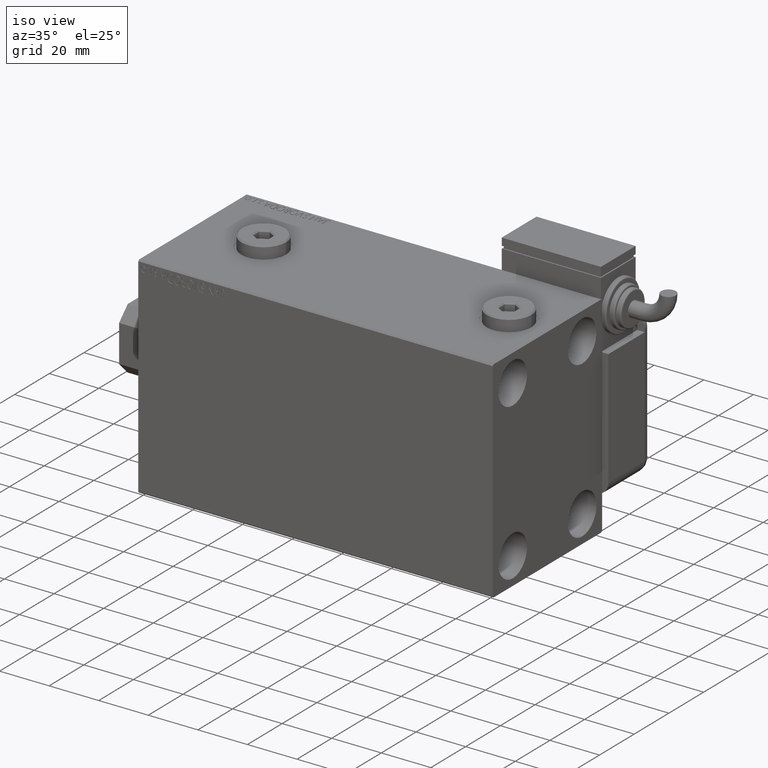
[diagram: clean part render]
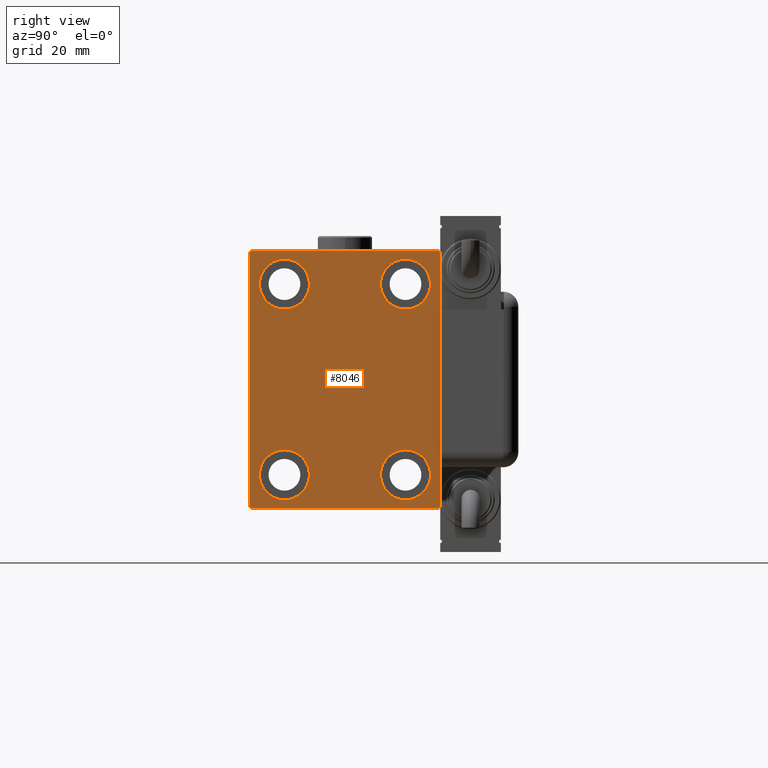
[diagram: tour spotlight — one face highlighted and labeled with its STEP entity id]
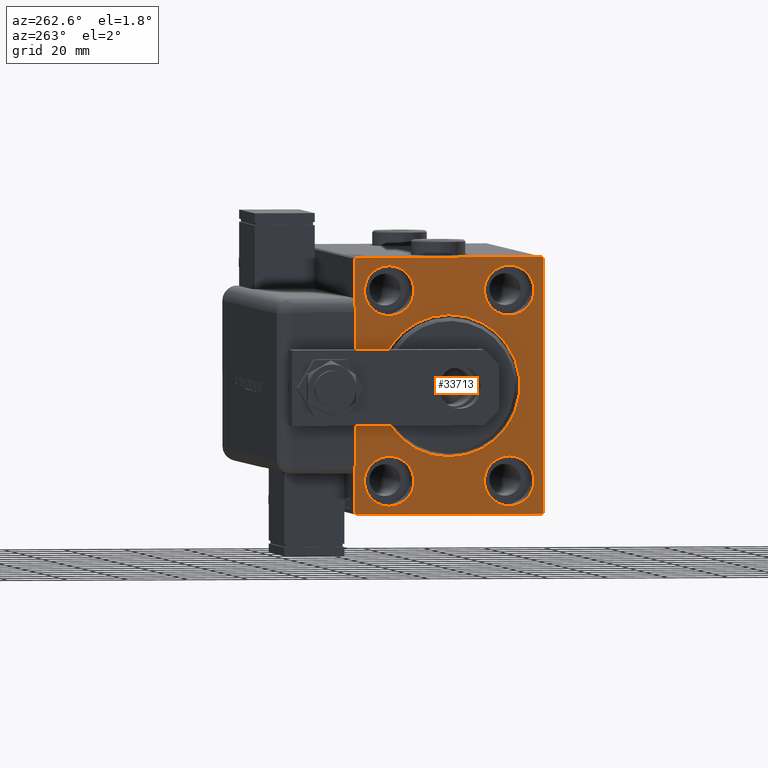
[diagram: tour spotlight — one face highlighted and labeled with its STEP entity id]
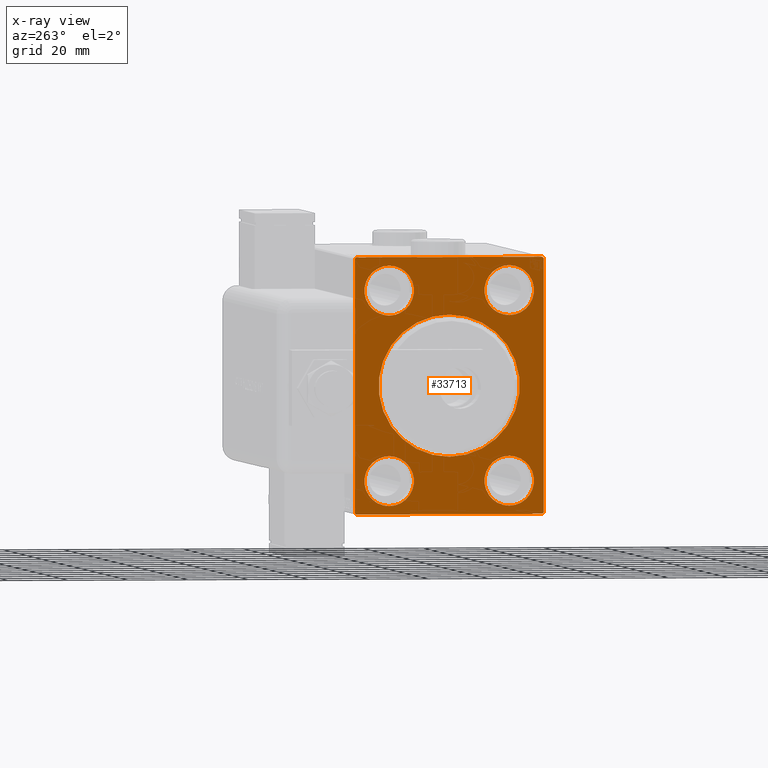
[diagram: x-ray of the same camera — body ghosted, this tour face saturated]
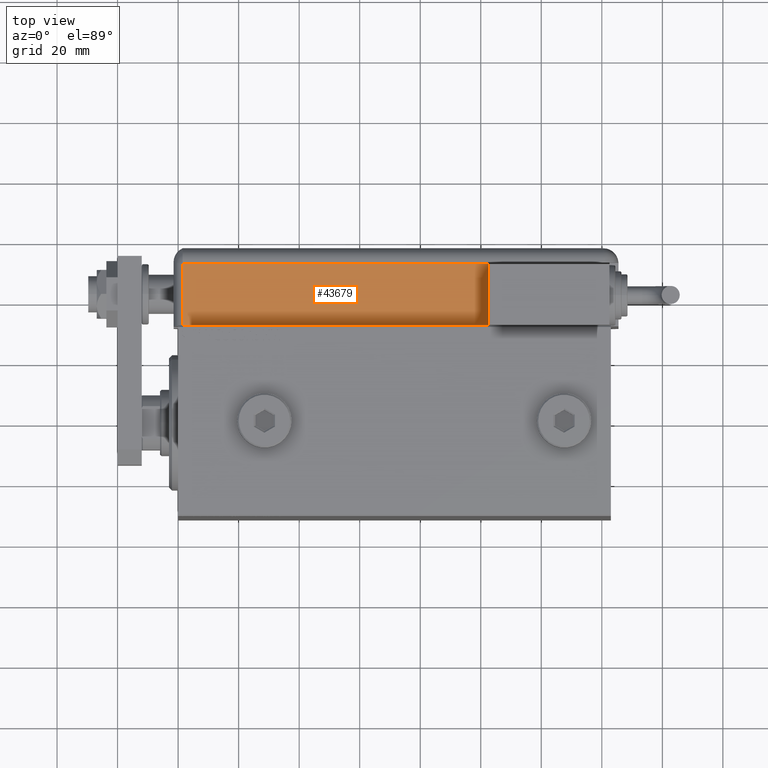
[diagram: tour spotlight — one face highlighted and labeled with its STEP entity id]
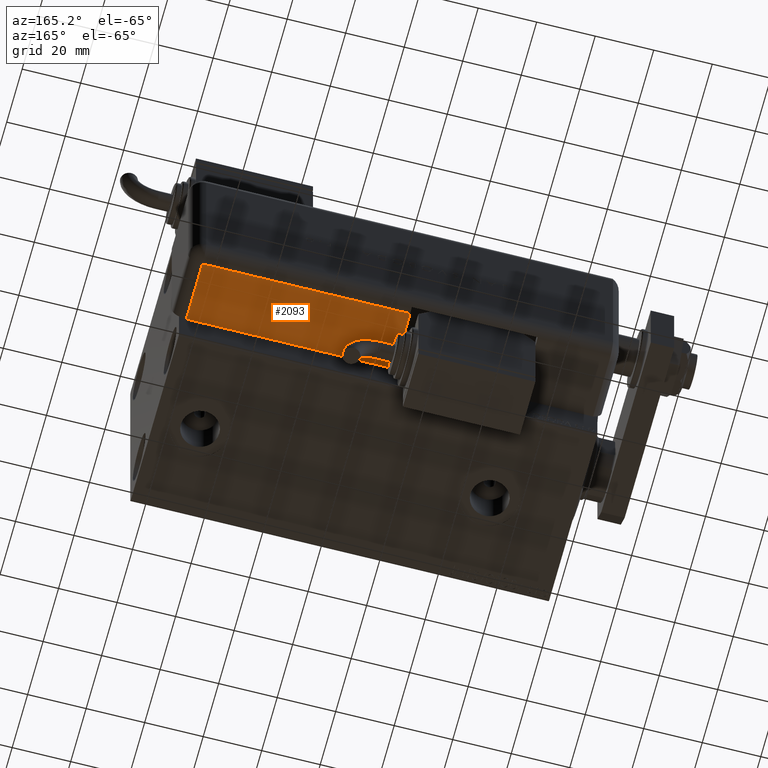
[diagram: tour spotlight — one face highlighted and labeled with its STEP entity id]
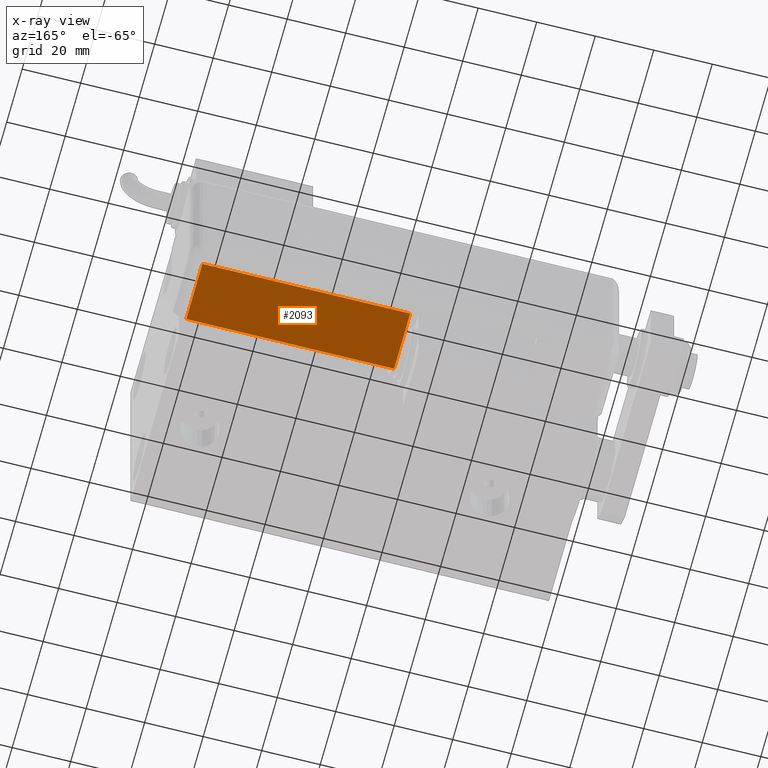
[diagram: x-ray of the same camera — body ghosted, this tour face saturated]
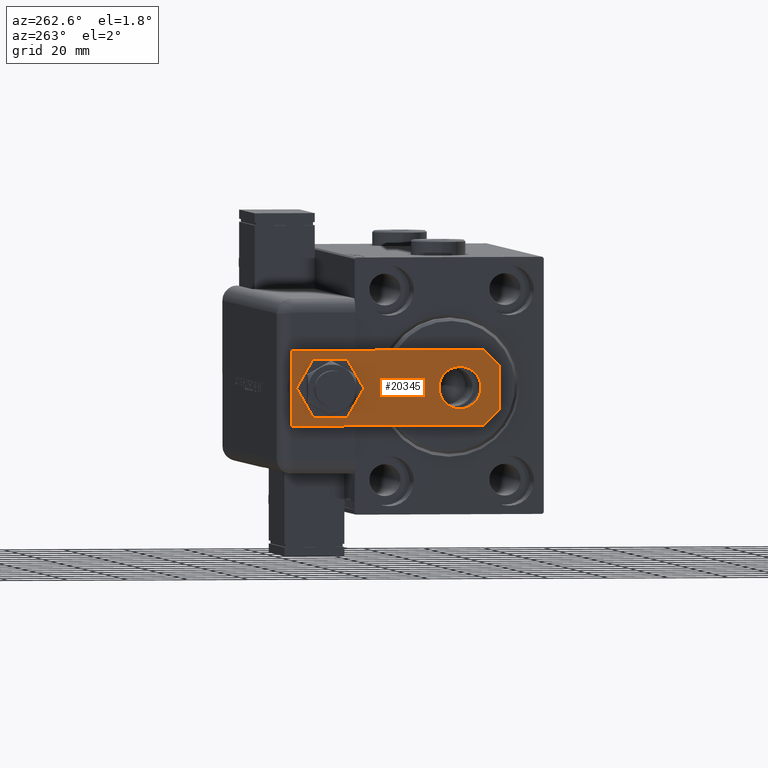
[diagram: tour spotlight — one face highlighted and labeled with its STEP entity id]
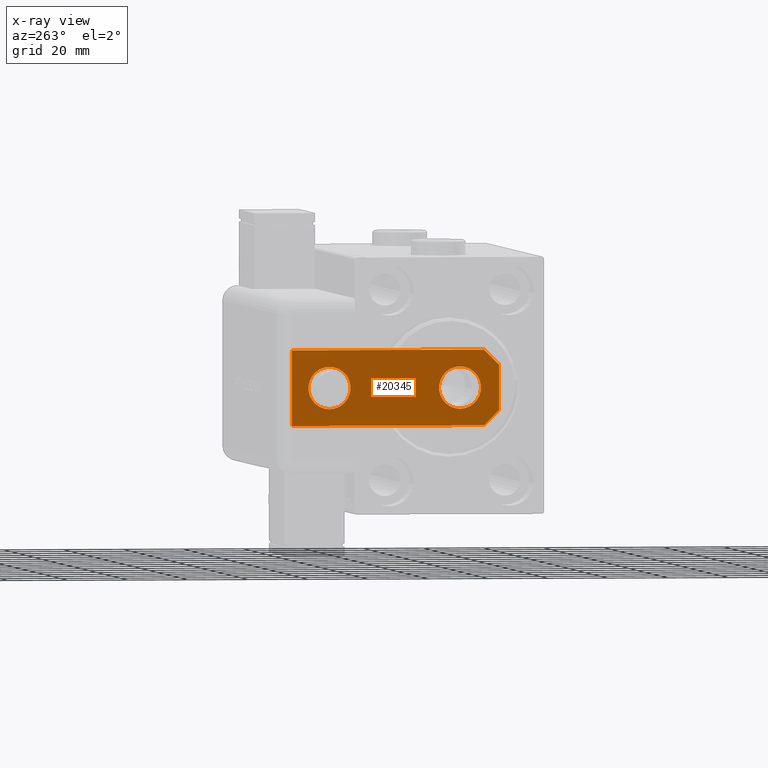
[diagram: x-ray of the same camera — body ghosted, this tour face saturated]
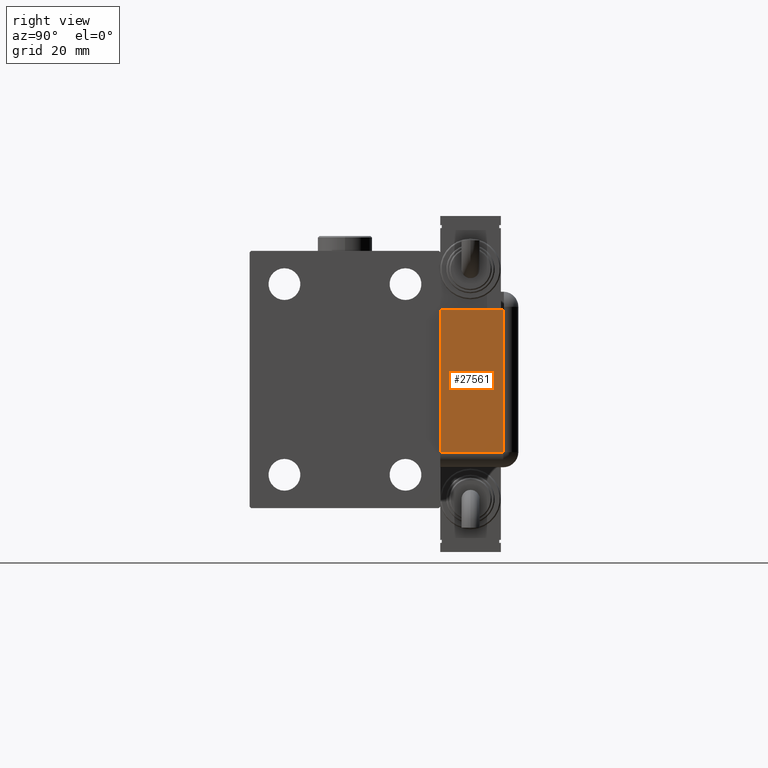
[diagram: tour spotlight — one face highlighted and labeled with its STEP entity id]
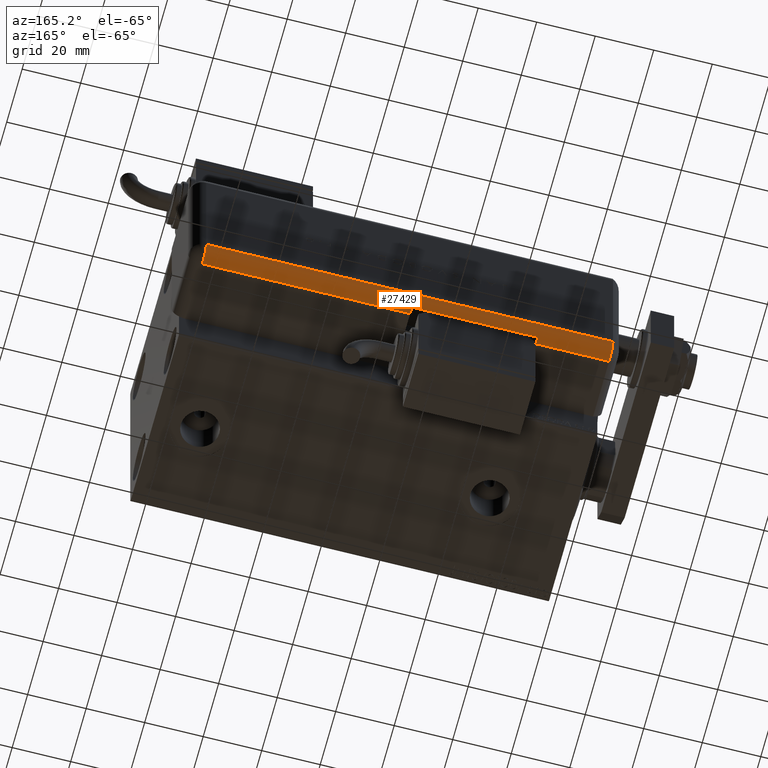
[diagram: tour spotlight — one face highlighted and labeled with its STEP entity id]
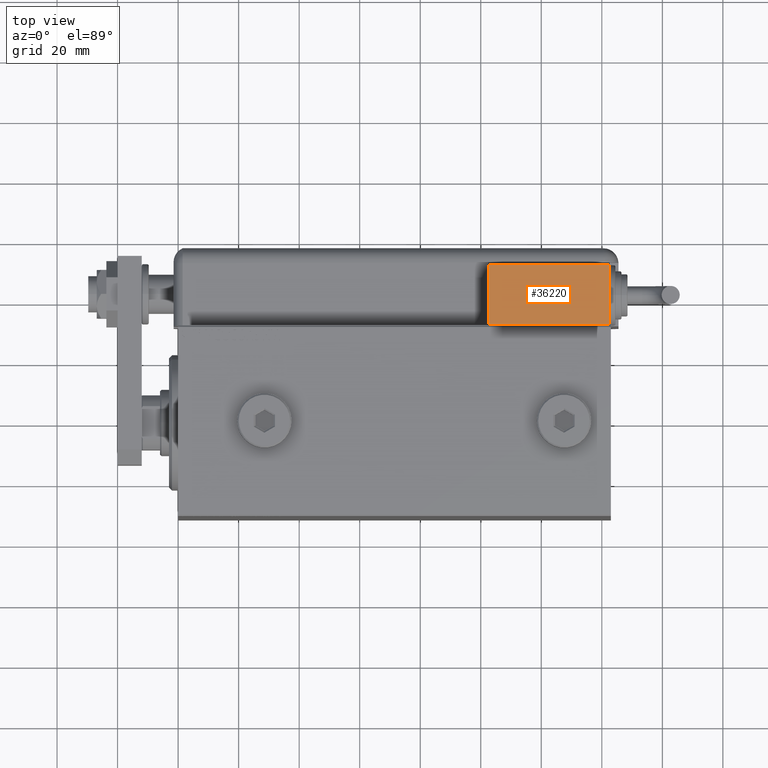
[diagram: tour spotlight — one face highlighted and labeled with its STEP entity id]
A machine part: a face-by-face anatomy tour. The part has 1300 B-rep faces; the first image is the clean iso view, then the 8 largest visible faces are spotlighted one at a time (largest first), each with its STEP entity span.

Face 1 — right view, entity #8046. In plain terms, the highlighted planar face has unit normal (1, 0, 0).
Definition (entity closure, byte-faithful):
#55 = EDGE_CURVE ( 'NONE', #12315, #12926, #47390, .T. ) ;
#236 = ORIENTED_EDGE ( 'NONE', *, *, #48116, .T. ) ;
#478 = VECTOR ( 'NONE', #53852, 1000.000000000000000 ) ;
#758 = DIRECTION ( 'NONE',  ( -1.000000000000000000, -0.000000000000000000, -0.000000000000000000 ) ) ;
#1248 = VERTEX_POINT ( 'NONE', #42701 ) ;
#1863 = EDGE_CURVE ( 'NONE', #31741, #46040, #50317, .T. ) ;
#2023 = DIRECTION ( 'NONE',  ( -1.000000000000000000, -0.000000000000000000, -0.000000000000000000 ) ) ;
#2128 = EDGE_CURVE ( 'NONE', #12926, #36430, #33469, .T. ) ;
#2531 = CARTESIAN_POINT ( 'NONE',  ( 143.0000000000000000, 20.00000000000000355, 23.25000000000000355 ) ) ;
#2705 = CARTESIAN_POINT ( 'NONE',  ( 143.0000000000000000, 19.99999999999999645, -23.24999999999999289 ) ) ;
#3223 = CARTESIAN_POINT ( 'NONE',  ( 143.0000000000000000, -19.99999999999999645, 39.74999999999999289 ) ) ;
#3240 = AXIS2_PLACEMENT_3D ( 'NONE', #28529, #758, #34662 ) ;
#3269 = CARTESIAN_POINT ( 'NONE',  ( 143.0000000000000000, 0.000000000000000000, 0.000000000000000000 ) ) ;
#3359 = VECTOR ( 'NONE', #51448, 1000.000000000000114 ) ;
#4122 = VECTOR ( 'NONE', #18320, 1000.000000000000114 ) ;
#4169 = CARTESIAN_POINT ( 'NONE',  ( 143.0000000000000000, -20.00000000000000355, -23.24999999999999289 ) ) ;
#4449 = AXIS2_PLACEMENT_3D ( 'NONE', #29407, #19835, #15215 ) ;
#5250 = DIRECTION ( 'NONE',  ( 0.000000000000000000, 0.000000000000000000, 1.000000000000000000 ) ) ;
#5288 = EDGE_CURVE ( 'NONE', #28452, #1248, #53291, .T. ) ;
#5404 = DIRECTION ( 'NONE',  ( 0.000000000000000000, -1.000000000000000000, -2.202823461557850341E-16 ) ) ;
#5503 = VERTEX_POINT ( 'NONE', #2705 ) ;
#5624 = VECTOR ( 'NONE', #54002, 1000.000000000000000 ) ;
#5638 = ORIENTED_EDGE ( 'NONE', *, *, #51215, .T. ) ;
#5788 = EDGE_CURVE ( 'NONE', #43553, #47359, #12927, .T. ) ;
#5862 = CARTESIAN_POINT ( 'NONE',  ( 143.0000000000000000, 31.00000000000002842, 42.50000000000000711 ) ) ;
#6019 = ORIENTED_EDGE ( 'NONE', *, *, #2128, .T. ) ;
#6223 = LINE ( 'NONE', #34598, #49549 ) ;
#6595 = DIRECTION ( 'NONE',  ( -1.000000000000000000, -0.000000000000000000, -0.000000000000000000 ) ) ;
#8046 = ADVANCED_FACE ( 'NONE', ( #31649, #50140, #21770, #40893, #41198 ), #54472, .T. ) ;
#8217 = VERTEX_POINT ( 'NONE', #18971 ) ;
#9013 = EDGE_LOOP ( 'NONE', ( #42281, #50844 ) ) ;
#10101 = CARTESIAN_POINT ( 'NONE',  ( 143.0000000000000000, 31.50000000000000000, 42.00000000000000711 ) ) ;
#10335 = VERTEX_POINT ( 'NONE', #50604 ) ;
#10468 = CARTESIAN_POINT ( 'NONE',  ( 143.0000000000000000, -31.50000000000000000, 41.99999999999996447 ) ) ;
#11288 = LINE ( 'NONE', #48599, #478 ) ;
#11592 = DIRECTION ( 'NONE',  ( 0.000000000000000000, 0.000000000000000000, 1.000000000000000000 ) ) ;
#12121 = VERTEX_POINT ( 'NONE', #10468 ) ;
#12315 = VERTEX_POINT ( 'NONE', #10101 ) ;
#12682 = VERTEX_POINT ( 'NONE', #48534 ) ;
#12926 = VERTEX_POINT ( 'NONE', #5862 ) ;
#12927 = CIRCLE ( 'NONE', #20798, 8.249999999999992895 ) ;
#13059 = AXIS2_PLACEMENT_3D ( 'NONE', #26008, #6595, #21674 ) ;
#13386 = EDGE_LOOP ( 'NONE', ( #24219, #43949 ) ) ;
#13931 = VECTOR ( 'NONE', #5404, 1000.000000000000000 ) ;
#15215 = DIRECTION ( 'NONE',  ( 0.000000000000000000, 0.000000000000000000, 1.000000000000000000 ) ) ;
#15563 = CARTESIAN_POINT ( 'NONE',  ( 143.0000000000000000, 19.99999999999999645, -31.49999999999999289 ) ) ;
#16850 = DIRECTION ( 'NONE',  ( 0.000000000000000000, 0.000000000000000000, -1.000000000000000000 ) ) ;
#17421 = DIRECTION ( 'NONE',  ( 0.000000000000000000, 0.000000000000000000, 1.000000000000000000 ) ) ;
#17607 = AXIS2_PLACEMENT_3D ( 'NONE', #15563, #34687, #43323 ) ;
#18199 = CARTESIAN_POINT ( 'NONE',  ( 143.0000000000000000, -20.00000000000000355, -31.49999999999999289 ) ) ;
#18320 = DIRECTION ( 'NONE',  ( -0.000000000000000000, 0.7071067811865474617, 0.7071067811865474617 ) ) ;
#18896 = ORIENTED_EDGE ( 'NONE', *, *, #47400, .T. ) ;
#18971 = CARTESIAN_POINT ( 'NONE',  ( 143.0000000000000000, 19.99999999999999645, -39.74999999999999289 ) ) ;
#19206 = CIRCLE ( 'NONE', #4449, 8.250000000000000000 ) ;
#19835 = DIRECTION ( 'NONE',  ( -1.000000000000000000, -0.000000000000000000, -0.000000000000000000 ) ) ;
#20798 = AXIS2_PLACEMENT_3D ( 'NONE', #47697, #2023, #11592 ) ;
#20984 = CARTESIAN_POINT ( 'NONE',  ( 143.0000000000000000, -31.50000000000000000, 42.49999999999999289 ) ) ;
#21340 = LINE ( 'NONE', #54336, #44495 ) ;
#21674 = DIRECTION ( 'NONE',  ( 0.000000000000000000, 0.000000000000000000, 1.000000000000000000 ) ) ;
#21770 = FACE_BOUND ( 'NONE', #60145, .T. ) ;
#23696 = CARTESIAN_POINT ( 'NONE',  ( 143.0000000000000000, -36.74999999999997868, 36.74999999999997868 ) ) ;
#23765 = AXIS2_PLACEMENT_3D ( 'NONE', #18199, #46569, #5250 ) ;
#24219 = ORIENTED_EDGE ( 'NONE', *, *, #1863, .T. ) ;
#24269 = EDGE_CURVE ( 'NONE', #36430, #12121, #41899, .T. ) ;
#24657 = EDGE_LOOP ( 'NONE', ( #33895, #45885 ) ) ;
#26008 = CARTESIAN_POINT ( 'NONE',  ( 143.0000000000000000, -19.99999999999999645, 31.50000000000000000 ) ) ;
#26503 = EDGE_CURVE ( 'NONE', #46040, #31741, #19206, .T. ) ;
#26570 = ORIENTED_EDGE ( 'NONE', *, *, #55, .T. ) ;
#26977 = DIRECTION ( 'NONE',  ( -1.000000000000000000, -0.000000000000000000, -0.000000000000000000 ) ) ;
#27584 = LINE ( 'NONE', #47001, #4122 ) ;
#27706 = CARTESIAN_POINT ( 'NONE',  ( 143.0000000000000000, -20.00000000000000355, -39.74999999999999289 ) ) ;
#28452 = VERTEX_POINT ( 'NONE', #3223 ) ;
#28529 = CARTESIAN_POINT ( 'NONE',  ( 143.0000000000000000, 20.00000000000000355, 31.50000000000000000 ) ) ;
#29407 = CARTESIAN_POINT ( 'NONE',  ( 143.0000000000000000, -20.00000000000000355, -31.49999999999999289 ) ) ;
#29633 = LINE ( 'NONE', #20984, #5624 ) ;
#30602 = VERTEX_POINT ( 'NONE', #48021 ) ;
#31552 = VECTOR ( 'NONE', #37841, 1000.000000000000000 ) ;
#31649 = FACE_BOUND ( 'NONE', #9013, .T. ) ;
#31741 = VERTEX_POINT ( 'NONE', #27706 ) ;
#32102 = DIRECTION ( 'NONE',  ( -1.000000000000000000, -0.000000000000000000, -0.000000000000000000 ) ) ;
#32150 = CARTESIAN_POINT ( 'NONE',  ( 143.0000000000000000, 31.50000000000001421, -42.00000000000000711 ) ) ;
#32797 = CIRCLE ( 'NONE', #13059, 8.249999999999992895 ) ;
#33469 = LINE ( 'NONE', #52259, #13931 ) ;
#33895 = ORIENTED_EDGE ( 'NONE', *, *, #50154, .T. ) ;
#34085 = ORIENTED_EDGE ( 'NONE', *, *, #60095, .T. ) ;
#34598 = CARTESIAN_POINT ( 'NONE',  ( 143.0000000000000000, 31.50000000000001421, -42.50000000000000711 ) ) ;
#34662 = DIRECTION ( 'NONE',  ( 0.000000000000000000, 0.000000000000000000, 1.000000000000000000 ) ) ;
#34687 = DIRECTION ( 'NONE',  ( -1.000000000000000000, -0.000000000000000000, -0.000000000000000000 ) ) ;
#36430 = VERTEX_POINT ( 'NONE', #43333 ) ;
#37296 = CIRCLE ( 'NONE', #17607, 8.250000000000000000 ) ;
#37451 = CARTESIAN_POINT ( 'NONE',  ( 143.0000000000000000, 19.99999999999999645, -31.49999999999999289 ) ) ;
#37841 = DIRECTION ( 'NONE',  ( -0.000000000000000000, -0.7071067811865279218, 0.7071067811865671127 ) ) ;
#39159 = EDGE_CURVE ( 'NONE', #8217, #5503, #37296, .T. ) ;
#39442 = AXIS2_PLACEMENT_3D ( 'NONE', #37451, #26977, #17421 ) ;
#39932 = ORIENTED_EDGE ( 'NONE', *, *, #5788, .T. ) ;
#40162 = ORIENTED_EDGE ( 'NONE', *, *, #54333, .T. ) ;
#40445 = EDGE_LOOP ( 'NONE', ( #6019, #57754, #34085, #18896, #40162, #236, #5638, #26570 ) ) ;
#40893 = FACE_BOUND ( 'NONE', #13386, .T. ) ;
#41198 = FACE_OUTER_BOUND ( 'NONE', #40445, .T. ) ;
#41899 = LINE ( 'NONE', #23696, #3359 ) ;
#42281 = ORIENTED_EDGE ( 'NONE', *, *, #39159, .T. ) ;
#42701 = CARTESIAN_POINT ( 'NONE',  ( 143.0000000000000000, -19.99999999999999645, 23.25000000000000355 ) ) ;
#43241 = DIRECTION ( 'NONE',  ( 0.000000000000000000, -1.632680918566406300E-16, 1.000000000000000000 ) ) ;
#43323 = DIRECTION ( 'NONE',  ( 0.000000000000000000, 0.000000000000000000, 1.000000000000000000 ) ) ;
#43333 = CARTESIAN_POINT ( 'NONE',  ( 143.0000000000000000, -30.99999999999997158, 42.49999999999999289 ) ) ;
#43553 = VERTEX_POINT ( 'NONE', #55050 ) ;
#43949 = ORIENTED_EDGE ( 'NONE', *, *, #26503, .T. ) ;
#44006 = EDGE_CURVE ( 'NONE', #5503, #8217, #49288, .T. ) ;
#44495 = VECTOR ( 'NONE', #59261, 1000.000000000000000 ) ;
#45885 = ORIENTED_EDGE ( 'NONE', *, *, #5288, .T. ) ;
#46040 = VERTEX_POINT ( 'NONE', #4169 ) ;
#46569 = DIRECTION ( 'NONE',  ( -1.000000000000000000, -0.000000000000000000, -0.000000000000000000 ) ) ;
#47001 = CARTESIAN_POINT ( 'NONE',  ( 143.0000000000000000, 36.75000000000001421, -36.75000000000001421 ) ) ;
#47359 = VERTEX_POINT ( 'NONE', #2531 ) ;
#47390 = LINE ( 'NONE', #47692, #31552 ) ;
#47400 = EDGE_CURVE ( 'NONE', #30602, #10335, #21340, .T. ) ;
#47692 = CARTESIAN_POINT ( 'NONE',  ( 143.0000000000000000, 36.75000000000088107, 36.74999999999884182 ) ) ;
#47697 = CARTESIAN_POINT ( 'NONE',  ( 143.0000000000000000, 20.00000000000000355, 31.50000000000000000 ) ) ;
#48021 = CARTESIAN_POINT ( 'NONE',  ( 143.0000000000000000, -31.50000000000000000, -42.00000000000003553 ) ) ;
#48116 = EDGE_CURVE ( 'NONE', #12682, #49231, #27584, .T. ) ;
#48534 = CARTESIAN_POINT ( 'NONE',  ( 143.0000000000000000, 31.00000000000001421, -42.50000000000000711 ) ) ;
#48599 = CARTESIAN_POINT ( 'NONE',  ( 143.0000000000000000, -31.50000000000000000, -42.50000000000000711 ) ) ;
#49231 = VERTEX_POINT ( 'NONE', #32150 ) ;
#49288 = CIRCLE ( 'NONE', #39442, 8.250000000000000000 ) ;
#49549 = VECTOR ( 'NONE', #43241, 1000.000000000000000 ) ;
#49884 = EDGE_CURVE ( 'NONE', #47359, #43553, #51486, .T. ) ;
#50140 = FACE_BOUND ( 'NONE', #24657, .T. ) ;
#50154 = EDGE_CURVE ( 'NONE', #1248, #28452, #32797, .T. ) ;
#50317 = CIRCLE ( 'NONE', #23765, 8.250000000000000000 ) ;
#50604 = CARTESIAN_POINT ( 'NONE',  ( 143.0000000000000000, -31.00000000000000000, -42.50000000000000711 ) ) ;
#50844 = ORIENTED_EDGE ( 'NONE', *, *, #44006, .T. ) ;
#51215 = EDGE_CURVE ( 'NONE', #49231, #12315, #6223, .T. ) ;
#51448 = DIRECTION ( 'NONE',  ( 0.000000000000000000, -0.7071067811865474617, -0.7071067811865474617 ) ) ;
#51486 = CIRCLE ( 'NONE', #3240, 8.249999999999992895 ) ;
#51814 = CARTESIAN_POINT ( 'NONE',  ( 143.0000000000000000, -19.99999999999999645, 31.50000000000000000 ) ) ;
#52259 = CARTESIAN_POINT ( 'NONE',  ( 143.0000000000000000, 31.50000000000000000, 42.50000000000000711 ) ) ;
#53291 = CIRCLE ( 'NONE', #57265, 8.249999999999992895 ) ;
#53852 = DIRECTION ( 'NONE',  ( 0.000000000000000000, 1.000000000000000000, 0.000000000000000000 ) ) ;
#54002 = DIRECTION ( 'NONE',  ( 0.000000000000000000, 0.000000000000000000, -1.000000000000000000 ) ) ;
#54333 = EDGE_CURVE ( 'NONE', #10335, #12682, #11288, .T. ) ;
#54336 = CARTESIAN_POINT ( 'NONE',  ( 143.0000000000000000, -36.74999999999914735, -36.75000000000118661 ) ) ;
#54387 = AXIS2_PLACEMENT_3D ( 'NONE', #3269, #60003, #16850 ) ;
#54472 = PLANE ( 'NONE',  #54387 ) ;
#55050 = CARTESIAN_POINT ( 'NONE',  ( 143.0000000000000000, 20.00000000000000355, 39.74999999999999289 ) ) ;
#55614 = ORIENTED_EDGE ( 'NONE', *, *, #49884, .T. ) ;
#57265 = AXIS2_PLACEMENT_3D ( 'NONE', #51814, #32102, #60762 ) ;
#57754 = ORIENTED_EDGE ( 'NONE', *, *, #24269, .T. ) ;
#59261 = DIRECTION ( 'NONE',  ( -0.000000000000000000, 0.7071067811865671127, -0.7071067811865279218 ) ) ;
#60003 = DIRECTION ( 'NONE',  ( 1.000000000000000000, 0.000000000000000000, 0.000000000000000000 ) ) ;
#60095 = EDGE_CURVE ( 'NONE', #12121, #30602, #29633, .T. ) ;
#60145 = EDGE_LOOP ( 'NONE', ( #55614, #39932 ) ) ;
#60762 = DIRECTION ( 'NONE',  ( 0.000000000000000000, 0.000000000000000000, 1.000000000000000000 ) ) ;

Face 2 — auxiliary view, entity #33713. An x-ray twin of the same camera follows (body ghosted, this face saturated) — the face is partly hidden behind the body. In plain terms, the highlighted planar face has unit normal (1, 0, 0).
Definition (entity closure, byte-faithful):
#65 = CARTESIAN_POINT ( 'NONE',  ( 0.000000000000000000, -31.50000000000000000, -42.00000000000003553 ) ) ;
#517 = CARTESIAN_POINT ( 'NONE',  ( 0.000000000000000000, 31.50000000000001421, -42.50000000000000711 ) ) ;
#781 = ORIENTED_EDGE ( 'NONE', *, *, #12391, .T. ) ;
#1058 = ORIENTED_EDGE ( 'NONE', *, *, #36862, .F. ) ;
#1132 = CARTESIAN_POINT ( 'NONE',  ( 0.000000000000000000, -20.00000000000000355, -31.49999999999999289 ) ) ;
#1155 = DIRECTION ( 'NONE',  ( -0.000000000000000000, -0.7071067811865671127, 0.7071067811865279218 ) ) ;
#1224 = VERTEX_POINT ( 'NONE', #4157 ) ;
#1626 = FACE_BOUND ( 'NONE', #24353, .T. ) ;
#1876 = CARTESIAN_POINT ( 'NONE',  ( 0.000000000000000000, 19.99999999999999645, -23.24999999999999289 ) ) ;
#2032 = CARTESIAN_POINT ( 'NONE',  ( 0.000000000000000000, 31.50000000000001421, -42.00000000000000711 ) ) ;
#2442 = EDGE_LOOP ( 'NONE', ( #39146, #23915 ) ) ;
#2618 = CIRCLE ( 'NONE', #10495, 8.250000000000000000 ) ;
#3505 = VECTOR ( 'NONE', #46790, 1000.000000000000000 ) ;
#3962 = VERTEX_POINT ( 'NONE', #29119 ) ;
#4008 = CARTESIAN_POINT ( 'NONE',  ( 0.000000000000000000, -31.50000000000000000, -42.50000000000000711 ) ) ;
#4105 = CARTESIAN_POINT ( 'NONE',  ( 0.000000000000000000, 31.50000000000001421, -42.00000000000000711 ) ) ;
#4157 = CARTESIAN_POINT ( 'NONE',  ( 0.000000000000000000, 0.000000000000000000, 23.50000000000001776 ) ) ;
#4311 = LINE ( 'NONE', #50260, #27434 ) ;
#4442 = EDGE_CURVE ( 'NONE', #6987, #22186, #55359, .T. ) ;
#4758 = CARTESIAN_POINT ( 'NONE',  ( 0.000000000000000000, 20.00000000000000355, 39.74999999999999289 ) ) ;
#4850 = CARTESIAN_POINT ( 'NONE',  ( 0.000000000000000000, -31.50000000000000000, 42.49999999999999289 ) ) ;
#4893 = ORIENTED_EDGE ( 'NONE', *, *, #44416, .F. ) ;
#5598 = DIRECTION ( 'NONE',  ( -1.000000000000000000, 0.000000000000000000, 0.000000000000000000 ) ) ;
#5602 = DIRECTION ( 'NONE',  ( 1.000000000000000000, 0.000000000000000000, 0.000000000000000000 ) ) ;
#6353 = CARTESIAN_POINT ( 'NONE',  ( 0.000000000000000000, 20.00000000000000355, 23.25000000000000355 ) ) ;
#6987 = VERTEX_POINT ( 'NONE', #13650 ) ;
#7077 = EDGE_LOOP ( 'NONE', ( #19289, #30067 ) ) ;
#7356 = LINE ( 'NONE', #16301, #17083 ) ;
#7550 = ORIENTED_EDGE ( 'NONE', *, *, #8781, .T. ) ;
#7726 = DIRECTION ( 'NONE',  ( 0.000000000000000000, -1.632680918566406300E-16, 1.000000000000000000 ) ) ;
#8053 = VERTEX_POINT ( 'NONE', #55375 ) ;
#8781 = EDGE_CURVE ( 'NONE', #50663, #16790, #18754, .T. ) ;
#9272 = CIRCLE ( 'NONE', #19087, 23.50000000000001776 ) ;
#10090 = DIRECTION ( 'NONE',  ( -1.000000000000000000, 0.000000000000000000, 0.000000000000000000 ) ) ;
#10127 = CARTESIAN_POINT ( 'NONE',  ( 0.000000000000000000, 2.877919977996282293E-15, -23.50000000000001776 ) ) ;
#10495 = AXIS2_PLACEMENT_3D ( 'NONE', #42064, #57168, #33733 ) ;
#10699 = DIRECTION ( 'NONE',  ( 1.000000000000000000, 0.000000000000000000, 0.000000000000000000 ) ) ;
#10797 = CARTESIAN_POINT ( 'NONE',  ( 0.000000000000000000, -20.00000000000000355, -23.24999999999999289 ) ) ;
#11671 = DIRECTION ( 'NONE',  ( -0.000000000000000000, 0.7071067811865474617, 0.7071067811865474617 ) ) ;
#11767 = DIRECTION ( 'NONE',  ( -1.000000000000000000, 0.000000000000000000, 0.000000000000000000 ) ) ;
#11990 = LINE ( 'NONE', #15704, #37161 ) ;
#12069 = CARTESIAN_POINT ( 'NONE',  ( 0.000000000000000000, 20.00000000000000355, 31.50000000000000000 ) ) ;
#12391 = EDGE_CURVE ( 'NONE', #1224, #41199, #9272, .T. ) ;
#13534 = CARTESIAN_POINT ( 'NONE',  ( 0.000000000000000000, -19.99999999999999645, 31.50000000000000000 ) ) ;
#13650 = CARTESIAN_POINT ( 'NONE',  ( 0.000000000000000000, -20.00000000000000355, -39.74999999999999289 ) ) ;
#14435 = VERTEX_POINT ( 'NONE', #44590 ) ;
#14910 = FACE_BOUND ( 'NONE', #16452, .T. ) ;
#15704 = CARTESIAN_POINT ( 'NONE',  ( 0.000000000000000000, 31.50000000000000000, 42.50000000000000711 ) ) ;
#15825 = DIRECTION ( 'NONE',  ( -1.000000000000000000, 0.000000000000000000, 0.000000000000000000 ) ) ;
#16301 = CARTESIAN_POINT ( 'NONE',  ( 0.000000000000000000, -31.50000000000000000, 41.99999999999996447 ) ) ;
#16406 = CIRCLE ( 'NONE', #58750, 8.249999999999992895 ) ;
#16452 = EDGE_LOOP ( 'NONE', ( #31874, #45883 ) ) ;
#16790 = VERTEX_POINT ( 'NONE', #65 ) ;
#16984 = CARTESIAN_POINT ( 'NONE',  ( 0.000000000000000000, 19.99999999999999645, -31.49999999999999289 ) ) ;
#17083 = VECTOR ( 'NONE', #11671, 1000.000000000000114 ) ;
#17476 = AXIS2_PLACEMENT_3D ( 'NONE', #13534, #45916, #37589 ) ;
#18077 = EDGE_CURVE ( 'NONE', #41567, #25363, #11990, .T. ) ;
#18564 = DIRECTION ( 'NONE',  ( 0.000000000000000000, 0.000000000000000000, 1.000000000000000000 ) ) ;
#18754 = LINE ( 'NONE', #19371, #31775 ) ;
#19087 = AXIS2_PLACEMENT_3D ( 'NONE', #34153, #10699, #48919 ) ;
#19243 = DIRECTION ( 'NONE',  ( 1.000000000000000000, 0.000000000000000000, 0.000000000000000000 ) ) ;
#19289 = ORIENTED_EDGE ( 'NONE', *, *, #53493, .F. ) ;
#19319 = DIRECTION ( 'NONE',  ( -1.000000000000000000, 0.000000000000000000, 0.000000000000000000 ) ) ;
#19371 = CARTESIAN_POINT ( 'NONE',  ( 0.000000000000000000, -31.00000000000000000, -42.50000000000000711 ) ) ;
#19459 = CIRCLE ( 'NONE', #17476, 8.249999999999992895 ) ;
#19476 = CARTESIAN_POINT ( 'NONE',  ( 0.000000000000000000, -19.99999999999999645, 31.50000000000000000 ) ) ;
#19766 = DIRECTION ( 'NONE',  ( 0.000000000000000000, 0.000000000000000000, 1.000000000000000000 ) ) ;
#19877 = VERTEX_POINT ( 'NONE', #4758 ) ;
#19939 = DIRECTION ( 'NONE',  ( 0.000000000000000000, 0.000000000000000000, 1.000000000000000000 ) ) ;
#20137 = FACE_BOUND ( 'NONE', #2442, .T. ) ;
#20445 = FACE_BOUND ( 'NONE', #7077, .T. ) ;
#21033 = VERTEX_POINT ( 'NONE', #1876 ) ;
#21834 = ORIENTED_EDGE ( 'NONE', *, *, #34831, .T. ) ;
#22118 = CIRCLE ( 'NONE', #58580, 23.50000000000001776 ) ;
#22186 = VERTEX_POINT ( 'NONE', #10797 ) ;
#22419 = ORIENTED_EDGE ( 'NONE', *, *, #53766, .T. ) ;
#22910 = DIRECTION ( 'NONE',  ( 0.000000000000000000, -0.7071067811865474617, -0.7071067811865474617 ) ) ;
#23120 = DIRECTION ( 'NONE',  ( -0.000000000000000000, 0.7071067811865279218, -0.7071067811865671127 ) ) ;
#23387 = EDGE_CURVE ( 'NONE', #3962, #25363, #7356, .T. ) ;
#23915 = ORIENTED_EDGE ( 'NONE', *, *, #51417, .F. ) ;
#24353 = EDGE_LOOP ( 'NONE', ( #4893, #1058 ) ) ;
#25008 = DIRECTION ( 'NONE',  ( -1.000000000000000000, 0.000000000000000000, 0.000000000000000000 ) ) ;
#25042 = CARTESIAN_POINT ( 'NONE',  ( 0.000000000000000000, 31.00000000000002842, 42.50000000000000711 ) ) ;
#25363 = VERTEX_POINT ( 'NONE', #46454 ) ;
#27434 = VECTOR ( 'NONE', #23120, 1000.000000000000000 ) ;
#29043 = CIRCLE ( 'NONE', #39868, 8.250000000000000000 ) ;
#29119 = CARTESIAN_POINT ( 'NONE',  ( 0.000000000000000000, -31.50000000000000000, 41.99999999999996447 ) ) ;
#30067 = ORIENTED_EDGE ( 'NONE', *, *, #4442, .F. ) ;
#30274 = DIRECTION ( 'NONE',  ( 0.000000000000000000, 0.000000000000000000, 1.000000000000000000 ) ) ;
#30886 = DIRECTION ( 'NONE',  ( 0.000000000000000000, 0.000000000000000000, 1.000000000000000000 ) ) ;
#31775 = VECTOR ( 'NONE', #1155, 1000.000000000000000 ) ;
#31814 = VERTEX_POINT ( 'NONE', #58417 ) ;
#31874 = ORIENTED_EDGE ( 'NONE', *, *, #54657, .F. ) ;
#32283 = AXIS2_PLACEMENT_3D ( 'NONE', #34340, #19243, #38957 ) ;
#33352 = ORIENTED_EDGE ( 'NONE', *, *, #39241, .T. ) ;
#33510 = CARTESIAN_POINT ( 'NONE',  ( 0.000000000000000000, 20.00000000000000355, 31.50000000000000000 ) ) ;
#33713 = ADVANCED_FACE ( 'NONE', ( #38654, #14910, #1626, #20137, #20445, #38066 ), #51921, .F. ) ;
#33733 = DIRECTION ( 'NONE',  ( 0.000000000000000000, 0.000000000000000000, 1.000000000000000000 ) ) ;
#34150 = EDGE_CURVE ( 'NONE', #54255, #8053, #56337, .T. ) ;
#34153 = CARTESIAN_POINT ( 'NONE',  ( 0.000000000000000000, 0.000000000000000000, 0.000000000000000000 ) ) ;
#34340 = CARTESIAN_POINT ( 'NONE',  ( 0.000000000000000000, 0.000000000000000000, 0.000000000000000000 ) ) ;
#34766 = EDGE_CURVE ( 'NONE', #50663, #37552, #54907, .T. ) ;
#34831 = EDGE_CURVE ( 'NONE', #41567, #8053, #4311, .T. ) ;
#36288 = VECTOR ( 'NONE', #41323, 1000.000000000000000 ) ;
#36862 = EDGE_CURVE ( 'NONE', #14435, #60915, #19459, .T. ) ;
#37161 = VECTOR ( 'NONE', #43764, 1000.000000000000000 ) ;
#37552 = VERTEX_POINT ( 'NONE', #41745 ) ;
#37589 = DIRECTION ( 'NONE',  ( 0.000000000000000000, 0.000000000000000000, 1.000000000000000000 ) ) ;
#38066 = FACE_OUTER_BOUND ( 'NONE', #38317, .T. ) ;
#38317 = EDGE_LOOP ( 'NONE', ( #40805, #57981, #45825, #21834, #51829, #33352, #57952, #7550 ) ) ;
#38654 = FACE_BOUND ( 'NONE', #39687, .T. ) ;
#38957 = DIRECTION ( 'NONE',  ( 0.000000000000000000, 0.000000000000000000, -1.000000000000000000 ) ) ;
#39146 = ORIENTED_EDGE ( 'NONE', *, *, #58433, .F. ) ;
#39241 = EDGE_CURVE ( 'NONE', #54255, #37552, #46353, .T. ) ;
#39687 = EDGE_LOOP ( 'NONE', ( #781, #22419 ) ) ;
#39868 = AXIS2_PLACEMENT_3D ( 'NONE', #58076, #15825, #18564 ) ;
#40805 = ORIENTED_EDGE ( 'NONE', *, *, #55778, .F. ) ;
#41199 = VERTEX_POINT ( 'NONE', #10127 ) ;
#41323 = DIRECTION ( 'NONE',  ( 0.000000000000000000, 1.000000000000000000, 0.000000000000000000 ) ) ;
#41567 = VERTEX_POINT ( 'NONE', #25042 ) ;
#41745 = CARTESIAN_POINT ( 'NONE',  ( 0.000000000000000000, 31.00000000000001421, -42.50000000000000711 ) ) ;
#42064 = CARTESIAN_POINT ( 'NONE',  ( 0.000000000000000000, 19.99999999999999645, -31.49999999999999289 ) ) ;
#43764 = DIRECTION ( 'NONE',  ( 0.000000000000000000, -1.000000000000000000, -2.202823461557850341E-16 ) ) ;
#44191 = VECTOR ( 'NONE', #22910, 1000.000000000000114 ) ;
#44364 = AXIS2_PLACEMENT_3D ( 'NONE', #19476, #5598, #19766 ) ;
#44416 = EDGE_CURVE ( 'NONE', #60915, #14435, #46293, .T. ) ;
#44590 = CARTESIAN_POINT ( 'NONE',  ( 0.000000000000000000, -19.99999999999999645, 23.25000000000000355 ) ) ;
#45825 = ORIENTED_EDGE ( 'NONE', *, *, #18077, .F. ) ;
#45883 = ORIENTED_EDGE ( 'NONE', *, *, #58871, .F. ) ;
#45916 = DIRECTION ( 'NONE',  ( -1.000000000000000000, 0.000000000000000000, 0.000000000000000000 ) ) ;
#46293 = CIRCLE ( 'NONE', #44364, 8.249999999999992895 ) ;
#46353 = LINE ( 'NONE', #4105, #44191 ) ;
#46454 = CARTESIAN_POINT ( 'NONE',  ( 0.000000000000000000, -30.99999999999997158, 42.49999999999999289 ) ) ;
#46790 = DIRECTION ( 'NONE',  ( 0.000000000000000000, 0.000000000000000000, -1.000000000000000000 ) ) ;
#47844 = CARTESIAN_POINT ( 'NONE',  ( 0.000000000000000000, 0.000000000000000000, 0.000000000000000000 ) ) ;
#48913 = CARTESIAN_POINT ( 'NONE',  ( 0.000000000000000000, -31.00000000000000000, -42.50000000000000711 ) ) ;
#48919 = DIRECTION ( 'NONE',  ( 0.000000000000000000, 0.000000000000000000, -1.000000000000000000 ) ) ;
#49044 = VERTEX_POINT ( 'NONE', #6353 ) ;
#49592 = CIRCLE ( 'NONE', #51566, 8.249999999999992895 ) ;
#50260 = CARTESIAN_POINT ( 'NONE',  ( 0.000000000000000000, 31.00000000000002842, 42.50000000000000711 ) ) ;
#50663 = VERTEX_POINT ( 'NONE', #48913 ) ;
#50972 = VECTOR ( 'NONE', #7726, 1000.000000000000000 ) ;
#51417 = EDGE_CURVE ( 'NONE', #49044, #19877, #49592, .T. ) ;
#51566 = AXIS2_PLACEMENT_3D ( 'NONE', #12069, #11767, #30886 ) ;
#51706 = CIRCLE ( 'NONE', #58620, 8.250000000000000000 ) ;
#51829 = ORIENTED_EDGE ( 'NONE', *, *, #34150, .F. ) ;
#51921 = PLANE ( 'NONE',  #32283 ) ;
#52603 = DIRECTION ( 'NONE',  ( 0.000000000000000000, 0.000000000000000000, 1.000000000000000000 ) ) ;
#52769 = DIRECTION ( 'NONE',  ( 0.000000000000000000, 0.000000000000000000, -1.000000000000000000 ) ) ;
#53378 = AXIS2_PLACEMENT_3D ( 'NONE', #1132, #10090, #19939 ) ;
#53493 = EDGE_CURVE ( 'NONE', #22186, #6987, #29043, .T. ) ;
#53766 = EDGE_CURVE ( 'NONE', #41199, #1224, #22118, .T. ) ;
#54255 = VERTEX_POINT ( 'NONE', #2032 ) ;
#54657 = EDGE_CURVE ( 'NONE', #21033, #31814, #51706, .T. ) ;
#54907 = LINE ( 'NONE', #4008, #36288 ) ;
#54978 = CARTESIAN_POINT ( 'NONE',  ( 0.000000000000000000, -19.99999999999999645, 39.74999999999999289 ) ) ;
#55359 = CIRCLE ( 'NONE', #53378, 8.250000000000000000 ) ;
#55375 = CARTESIAN_POINT ( 'NONE',  ( 0.000000000000000000, 31.50000000000000000, 42.00000000000000711 ) ) ;
#55732 = LINE ( 'NONE', #4850, #3505 ) ;
#55778 = EDGE_CURVE ( 'NONE', #3962, #16790, #55732, .T. ) ;
#56337 = LINE ( 'NONE', #517, #50972 ) ;
#57168 = DIRECTION ( 'NONE',  ( -1.000000000000000000, 0.000000000000000000, 0.000000000000000000 ) ) ;
#57952 = ORIENTED_EDGE ( 'NONE', *, *, #34766, .F. ) ;
#57981 = ORIENTED_EDGE ( 'NONE', *, *, #23387, .T. ) ;
#58076 = CARTESIAN_POINT ( 'NONE',  ( 0.000000000000000000, -20.00000000000000355, -31.49999999999999289 ) ) ;
#58417 = CARTESIAN_POINT ( 'NONE',  ( 0.000000000000000000, 19.99999999999999645, -39.74999999999999289 ) ) ;
#58433 = EDGE_CURVE ( 'NONE', #19877, #49044, #16406, .T. ) ;
#58580 = AXIS2_PLACEMENT_3D ( 'NONE', #47844, #5602, #52769 ) ;
#58620 = AXIS2_PLACEMENT_3D ( 'NONE', #16984, #25008, #30274 ) ;
#58750 = AXIS2_PLACEMENT_3D ( 'NONE', #33510, #19319, #52603 ) ;
#58871 = EDGE_CURVE ( 'NONE', #31814, #21033, #2618, .T. ) ;
#60915 = VERTEX_POINT ( 'NONE', #54978 ) ;

Face 3 — top view, entity #43679. In plain terms, the highlighted planar face has unit normal (-0, -0, -1).
Definition (entity closure, byte-faithful):
#440 = DIRECTION ( 'NONE',  ( 0.000000000000000000, 0.000000000000000000, 1.000000000000000000 ) ) ;
#1363 = EDGE_CURVE ( 'NONE', #40744, #38331, #10606, .T. ) ;
#5830 = ORIENTED_EDGE ( 'NONE', *, *, #46347, .F. ) ;
#10606 = LINE ( 'NONE', #42089, #13893 ) ;
#13893 = VECTOR ( 'NONE', #60894, 1000.000000000000000 ) ;
#16395 = CARTESIAN_POINT ( 'NONE',  ( 28.99999999999999645, 20.79999999999998295, 144.0000000000000000 ) ) ;
#16756 = DIRECTION ( 'NONE',  ( -0.000000000000000000, 1.000000000000000000, -0.000000000000000000 ) ) ;
#17050 = CARTESIAN_POINT ( 'NONE',  ( 28.99999999999999645, 25.79999999999998295, 144.0000000000000000 ) ) ;
#20025 = LINE ( 'NONE', #56761, #23769 ) ;
#23409 = CARTESIAN_POINT ( 'NONE',  ( 28.99999999999999645, 0.000000000000000000, 43.00000000000000000 ) ) ;
#23769 = VECTOR ( 'NONE', #38548, 1000.000000000000000 ) ;
#26509 = VERTEX_POINT ( 'NONE', #41075 ) ;
#29411 = CARTESIAN_POINT ( 'NONE',  ( 28.99999999999999645, 25.79999999999998295, 144.0000000000000000 ) ) ;
#29578 = AXIS2_PLACEMENT_3D ( 'NONE', #29411, #38074, #440 ) ;
#30732 = LINE ( 'NONE', #53556, #50771 ) ;
#33652 = ORIENTED_EDGE ( 'NONE', *, *, #50127, .F. ) ;
#38074 = DIRECTION ( 'NONE',  ( -1.000000000000000000, 0.000000000000000000, 0.000000000000000000 ) ) ;
#38331 = VERTEX_POINT ( 'NONE', #16395 ) ;
#38548 = DIRECTION ( 'NONE',  ( -0.000000000000000000, -1.000000000000000000, -0.000000000000000000 ) ) ;
#40744 = VERTEX_POINT ( 'NONE', #56941 ) ;
#41075 = CARTESIAN_POINT ( 'NONE',  ( 28.99999999999999645, -9.421223957302265857E-15, 144.0000000000000000 ) ) ;
#41627 = VECTOR ( 'NONE', #16756, 1000.000000000000000 ) ;
#42089 = CARTESIAN_POINT ( 'NONE',  ( 28.99999999999999645, 20.79999999999998295, 144.0000000000000000 ) ) ;
#43285 = PLANE ( 'NONE',  #29578 ) ;
#43679 = ADVANCED_FACE ( 'NONE', ( #47618 ), #43285, .F. ) ;
#45880 = ORIENTED_EDGE ( 'NONE', *, *, #1363, .T. ) ;
#46347 = EDGE_CURVE ( 'NONE', #40744, #58032, #20025, .T. ) ;
#47618 = FACE_OUTER_BOUND ( 'NONE', #55308, .T. ) ;
#49216 = DIRECTION ( 'NONE',  ( -0.000000000000000000, -0.000000000000000000, -1.000000000000000000 ) ) ;
#50127 = EDGE_CURVE ( 'NONE', #26509, #38331, #58998, .T. ) ;
#50771 = VECTOR ( 'NONE', #49216, 1000.000000000000000 ) ;
#53556 = CARTESIAN_POINT ( 'NONE',  ( 28.99999999999999645, -9.421223957302265857E-15, 144.0000000000000000 ) ) ;
#55308 = EDGE_LOOP ( 'NONE', ( #58891, #5830, #45880, #33652 ) ) ;
#56712 = EDGE_CURVE ( 'NONE', #26509, #58032, #30732, .T. ) ;
#56761 = CARTESIAN_POINT ( 'NONE',  ( 28.99999999999999645, 0.000000000000000000, 43.00000000000000000 ) ) ;
#56941 = CARTESIAN_POINT ( 'NONE',  ( 28.99999999999999645, 20.79999999999998295, 43.00000000000000000 ) ) ;
#58032 = VERTEX_POINT ( 'NONE', #23409 ) ;
#58891 = ORIENTED_EDGE ( 'NONE', *, *, #56712, .T. ) ;
#58998 = LINE ( 'NONE', #17050, #41627 ) ;
#60894 = DIRECTION ( 'NONE',  ( -0.000000000000000000, -0.000000000000000000, 1.000000000000000000 ) ) ;

Face 4 — auxiliary view, entity #2093. An x-ray twin of the same camera follows (body ghosted, this face saturated) — the face is partly hidden behind the body. In plain terms, the highlighted planar face has unit normal (0, 0, 1).
Definition (entity closure, byte-faithful):
#2093 = ADVANCED_FACE ( 'NONE', ( #5996 ), #23592, .F. ) ;
#2611 = CARTESIAN_POINT ( 'NONE',  ( -28.99999999999999645, 20.79999999999998295, 76.00000000000000000 ) ) ;
#4066 = AXIS2_PLACEMENT_3D ( 'NONE', #9727, #10020, #47343 ) ;
#5061 = EDGE_CURVE ( 'NONE', #34255, #46757, #20094, .T. ) ;
#5996 = FACE_OUTER_BOUND ( 'NONE', #26429, .T. ) ;
#8068 = CARTESIAN_POINT ( 'NONE',  ( -28.99999999999999645, 20.79999999999998295, 144.0000000000000000 ) ) ;
#8863 = LINE ( 'NONE', #13483, #46782 ) ;
#9727 = CARTESIAN_POINT ( 'NONE',  ( -28.99999999999999645, 25.79999999999998295, 144.0000000000000000 ) ) ;
#10020 = DIRECTION ( 'NONE',  ( 1.000000000000000000, 0.000000000000000000, -0.000000000000000000 ) ) ;
#13483 = CARTESIAN_POINT ( 'NONE',  ( -28.99999999999999645, 22.99999999999998934, 76.00000000000000000 ) ) ;
#17508 = DIRECTION ( 'NONE',  ( 0.000000000000000000, -1.000000000000000000, 0.000000000000000000 ) ) ;
#20094 = LINE ( 'NONE', #29968, #44442 ) ;
#23592 = PLANE ( 'NONE',  #4066 ) ;
#26429 = EDGE_LOOP ( 'NONE', ( #32408, #36892, #60380, #31804 ) ) ;
#26435 = CARTESIAN_POINT ( 'NONE',  ( -28.99999999999999645, -1.040834085586084257E-14, 5.000000000000004441 ) ) ;
#26578 = DIRECTION ( 'NONE',  ( 0.000000000000000000, 0.000000000000000000, -1.000000000000000000 ) ) ;
#29792 = CARTESIAN_POINT ( 'NONE',  ( -28.99999999999999645, -9.421223957302264279E-15, 76.00000000000000000 ) ) ;
#29968 = CARTESIAN_POINT ( 'NONE',  ( -28.99999999999999645, -9.421223957302265857E-15, 144.0000000000000000 ) ) ;
#31414 = CARTESIAN_POINT ( 'NONE',  ( -28.99999999999999645, 20.79999999999998295, 5.000000000000004441 ) ) ;
#31804 = ORIENTED_EDGE ( 'NONE', *, *, #41299, .T. ) ;
#32408 = ORIENTED_EDGE ( 'NONE', *, *, #5061, .F. ) ;
#34255 = VERTEX_POINT ( 'NONE', #29792 ) ;
#36892 = ORIENTED_EDGE ( 'NONE', *, *, #55727, .F. ) ;
#37441 = VERTEX_POINT ( 'NONE', #2611 ) ;
#37808 = EDGE_CURVE ( 'NONE', #37441, #56372, #55546, .T. ) ;
#39520 = DIRECTION ( 'NONE',  ( -0.000000000000000000, -0.000000000000000000, -1.000000000000000000 ) ) ;
#41155 = VECTOR ( 'NONE', #26578, 1000.000000000000000 ) ;
#41299 = EDGE_CURVE ( 'NONE', #56372, #46757, #58816, .T. ) ;
#44282 = VECTOR ( 'NONE', #48945, 1000.000000000000000 ) ;
#44442 = VECTOR ( 'NONE', #39520, 1000.000000000000000 ) ;
#46757 = VERTEX_POINT ( 'NONE', #50454 ) ;
#46782 = VECTOR ( 'NONE', #17508, 1000.000000000000000 ) ;
#47343 = DIRECTION ( 'NONE',  ( -0.000000000000000000, 0.000000000000000000, -1.000000000000000000 ) ) ;
#48945 = DIRECTION ( 'NONE',  ( 0.000000000000000000, -1.000000000000000000, 0.000000000000000000 ) ) ;
#50454 = CARTESIAN_POINT ( 'NONE',  ( -28.99999999999999645, -9.421223957302265857E-15, 5.000000000000004441 ) ) ;
#55546 = LINE ( 'NONE', #8068, #41155 ) ;
#55727 = EDGE_CURVE ( 'NONE', #37441, #34255, #8863, .T. ) ;
#56372 = VERTEX_POINT ( 'NONE', #31414 ) ;
#58816 = LINE ( 'NONE', #26435, #44282 ) ;
#60380 = ORIENTED_EDGE ( 'NONE', *, *, #37808, .T. ) ;

Face 5 — auxiliary view, entity #20345. An x-ray twin of the same camera follows (body ghosted, this face saturated) — the face is partly hidden behind the body. In plain terms, the highlighted planar face has unit normal (1, 0, -0).
Definition (entity closure, byte-faithful):
#479 = CARTESIAN_POINT ( 'NONE',  ( 12.50000000000001066, 5.000000000000004441, 0.000000000000000000 ) ) ;
#823 = CARTESIAN_POINT ( 'NONE',  ( 0.000000000000000000, 0.000000000000000000, 0.000000000000000000 ) ) ;
#948 = CARTESIAN_POINT ( 'NONE',  ( -7.500000000000040856, 0.000000000000000000, 0.000000000000000000 ) ) ;
#1236 = DIRECTION ( 'NONE',  ( 1.000000000000000000, 0.000000000000000000, 0.000000000000000000 ) ) ;
#1315 = EDGE_CURVE ( 'NONE', #25871, #21108, #14021, .T. ) ;
#1517 = CIRCLE ( 'NONE', #46833, 6.999999999999998224 ) ;
#2706 = EDGE_LOOP ( 'NONE', ( #18891, #25810 ) ) ;
#3102 = CARTESIAN_POINT ( 'NONE',  ( 0.000000000000000000, 56.50000000000000711, 0.000000000000000000 ) ) ;
#3597 = EDGE_CURVE ( 'NONE', #41429, #38027, #18648, .T. ) ;
#3706 = AXIS2_PLACEMENT_3D ( 'NONE', #32496, #51284, #17385 ) ;
#6020 = VECTOR ( 'NONE', #43300, 1000.000000000000000 ) ;
#6053 = PLANE ( 'NONE',  #20075 ) ;
#6514 = CARTESIAN_POINT ( 'NONE',  ( 7.499999999999992895, 0.000000000000000000, 0.000000000000000000 ) ) ;
#6523 = EDGE_CURVE ( 'NONE', #55245, #42207, #45495, .T. ) ;
#6657 = CIRCLE ( 'NONE', #3706, 7.000000000000000000 ) ;
#7839 = ORIENTED_EDGE ( 'NONE', *, *, #3597, .F. ) ;
#9439 = ORIENTED_EDGE ( 'NONE', *, *, #40654, .T. ) ;
#10186 = VECTOR ( 'NONE', #24687, 1000.000000000000000 ) ;
#10784 = DIRECTION ( 'NONE',  ( 0.000000000000000000, 0.000000000000000000, 1.000000000000000000 ) ) ;
#10811 = LINE ( 'NONE', #15447, #10186 ) ;
#11748 = DIRECTION ( 'NONE',  ( 1.000000000000000000, 0.000000000000000000, 0.000000000000000000 ) ) ;
#12971 = VECTOR ( 'NONE', #50725, 1000.000000000000000 ) ;
#13055 = ORIENTED_EDGE ( 'NONE', *, *, #1315, .F. ) ;
#13126 = VECTOR ( 'NONE', #50310, 1000.000000000000000 ) ;
#13925 = CARTESIAN_POINT ( 'NONE',  ( 12.50000000000000178, 69.00000000000000000, 0.000000000000000000 ) ) ;
#14021 = LINE ( 'NONE', #14640, #6020 ) ;
#14640 = CARTESIAN_POINT ( 'NONE',  ( -12.50000000000001066, 0.000000000000000000, 0.000000000000000000 ) ) ;
#15298 = FACE_BOUND ( 'NONE', #36284, .T. ) ;
#15447 = CARTESIAN_POINT ( 'NONE',  ( -7.500000000000040856, 0.000000000000000000, 0.000000000000000000 ) ) ;
#16663 = DIRECTION ( 'NONE',  ( 0.000000000000000000, 0.000000000000000000, 1.000000000000000000 ) ) ;
#17274 = CARTESIAN_POINT ( 'NONE',  ( 6.999999999999998224, 56.50000000000000711, 0.000000000000000000 ) ) ;
#17385 = DIRECTION ( 'NONE',  ( 1.000000000000000000, 0.000000000000000000, 0.000000000000000000 ) ) ;
#17823 = EDGE_LOOP ( 'NONE', ( #13055, #20409, #7839, #43068, #42025, #25942 ) ) ;
#18305 = CARTESIAN_POINT ( 'NONE',  ( -12.49999999999999822, 69.00000000000000000, 0.000000000000000000 ) ) ;
#18648 = LINE ( 'NONE', #18948, #50369 ) ;
#18891 = ORIENTED_EDGE ( 'NONE', *, *, #32040, .T. ) ;
#18948 = CARTESIAN_POINT ( 'NONE',  ( -12.49999999999999822, 69.00000000000000000, 0.000000000000000000 ) ) ;
#19268 = CARTESIAN_POINT ( 'NONE',  ( -6.999999999999998224, 56.50000000000000711, 0.000000000000000000 ) ) ;
#19588 = CARTESIAN_POINT ( 'NONE',  ( 7.000000000000000000, 13.00000000000001066, 0.000000000000000000 ) ) ;
#20075 = AXIS2_PLACEMENT_3D ( 'NONE', #823, #37844, #56653 ) ;
#20345 = ADVANCED_FACE ( 'NONE', ( #57550, #15298, #23950 ), #6053, .F. ) ;
#20409 = ORIENTED_EDGE ( 'NONE', *, *, #22953, .T. ) ;
#21108 = VERTEX_POINT ( 'NONE', #6514 ) ;
#22842 = EDGE_CURVE ( 'NONE', #42207, #41429, #46616, .T. ) ;
#22953 = EDGE_CURVE ( 'NONE', #25871, #38027, #10811, .T. ) ;
#23950 = FACE_BOUND ( 'NONE', #2706, .T. ) ;
#24310 = CARTESIAN_POINT ( 'NONE',  ( 12.50000000000000178, 69.00000000000000000, 0.000000000000000000 ) ) ;
#24687 = DIRECTION ( 'NONE',  ( -0.7071067811865450192, 0.7071067811865500152, -0.000000000000000000 ) ) ;
#25810 = ORIENTED_EDGE ( 'NONE', *, *, #25912, .T. ) ;
#25871 = VERTEX_POINT ( 'NONE', #948 ) ;
#25912 = EDGE_CURVE ( 'NONE', #51898, #52270, #34924, .T. ) ;
#25942 = ORIENTED_EDGE ( 'NONE', *, *, #39098, .T. ) ;
#26505 = CIRCLE ( 'NONE', #56040, 6.999999999999998224 ) ;
#26693 = CARTESIAN_POINT ( 'NONE',  ( 12.50000000000001066, 0.000000000000000000, 0.000000000000000000 ) ) ;
#28551 = DIRECTION ( 'NONE',  ( -0.7071067811865485719, -0.7071067811865465735, -0.000000000000000000 ) ) ;
#29818 = CARTESIAN_POINT ( 'NONE',  ( 12.50000000000001066, 5.000000000000003553, 0.000000000000000000 ) ) ;
#29988 = AXIS2_PLACEMENT_3D ( 'NONE', #40403, #16663, #50241 ) ;
#32040 = EDGE_CURVE ( 'NONE', #52270, #51898, #6657, .T. ) ;
#32496 = CARTESIAN_POINT ( 'NONE',  ( 3.851859888774471706E-31, 13.00000000000001066, 0.000000000000000000 ) ) ;
#33779 = LINE ( 'NONE', #479, #59898 ) ;
#34924 = CIRCLE ( 'NONE', #29988, 7.000000000000000000 ) ;
#36284 = EDGE_LOOP ( 'NONE', ( #51221, #9439 ) ) ;
#36404 = DIRECTION ( 'NONE',  ( 0.000000000000000000, 0.000000000000000000, 1.000000000000000000 ) ) ;
#37844 = DIRECTION ( 'NONE',  ( -0.000000000000000000, 0.000000000000000000, 1.000000000000000000 ) ) ;
#38027 = VERTEX_POINT ( 'NONE', #45296 ) ;
#38386 = DIRECTION ( 'NONE',  ( -1.759864395918499754E-16, -1.000000000000000000, 0.000000000000000000 ) ) ;
#39098 = EDGE_CURVE ( 'NONE', #55245, #21108, #33779, .T. ) ;
#40403 = CARTESIAN_POINT ( 'NONE',  ( 3.851859888774471706E-31, 13.00000000000001066, 0.000000000000000000 ) ) ;
#40654 = EDGE_CURVE ( 'NONE', #60249, #49987, #26505, .T. ) ;
#41429 = VERTEX_POINT ( 'NONE', #18305 ) ;
#42025 = ORIENTED_EDGE ( 'NONE', *, *, #6523, .F. ) ;
#42207 = VERTEX_POINT ( 'NONE', #24310 ) ;
#43068 = ORIENTED_EDGE ( 'NONE', *, *, #22842, .F. ) ;
#43300 = DIRECTION ( 'NONE',  ( 1.000000000000000000, 0.000000000000000000, 0.000000000000000000 ) ) ;
#45296 = CARTESIAN_POINT ( 'NONE',  ( -12.50000000000000888, 5.000000000000004441, 0.000000000000000000 ) ) ;
#45495 = LINE ( 'NONE', #26693, #12971 ) ;
#46616 = LINE ( 'NONE', #13925, #13126 ) ;
#46833 = AXIS2_PLACEMENT_3D ( 'NONE', #3102, #36404, #11748 ) ;
#49987 = VERTEX_POINT ( 'NONE', #19268 ) ;
#50241 = DIRECTION ( 'NONE',  ( 1.000000000000000000, 0.000000000000000000, 0.000000000000000000 ) ) ;
#50285 = CARTESIAN_POINT ( 'NONE',  ( -7.000000000000000000, 13.00000000000001066, 0.000000000000000000 ) ) ;
#50310 = DIRECTION ( 'NONE',  ( -1.000000000000000000, 0.000000000000000000, 0.000000000000000000 ) ) ;
#50369 = VECTOR ( 'NONE', #38386, 1000.000000000000000 ) ;
#50725 = DIRECTION ( 'NONE',  ( -1.257045997084642611E-16, 1.000000000000000000, 0.000000000000000000 ) ) ;
#51221 = ORIENTED_EDGE ( 'NONE', *, *, #56182, .T. ) ;
#51284 = DIRECTION ( 'NONE',  ( 0.000000000000000000, 0.000000000000000000, 1.000000000000000000 ) ) ;
#51898 = VERTEX_POINT ( 'NONE', #19588 ) ;
#52270 = VERTEX_POINT ( 'NONE', #50285 ) ;
#52438 = CARTESIAN_POINT ( 'NONE',  ( 0.000000000000000000, 56.50000000000000711, 0.000000000000000000 ) ) ;
#55245 = VERTEX_POINT ( 'NONE', #29818 ) ;
#56040 = AXIS2_PLACEMENT_3D ( 'NONE', #52438, #10784, #1236 ) ;
#56182 = EDGE_CURVE ( 'NONE', #49987, #60249, #1517, .T. ) ;
#56653 = DIRECTION ( 'NONE',  ( 1.000000000000000000, 0.000000000000000000, 0.000000000000000000 ) ) ;
#57550 = FACE_OUTER_BOUND ( 'NONE', #17823, .T. ) ;
#59898 = VECTOR ( 'NONE', #28551, 1000.000000000000000 ) ;
#60249 = VERTEX_POINT ( 'NONE', #17274 ) ;

Face 6 — right view, entity #27561. In plain terms, the highlighted planar face has unit normal (1, -0, -0).
Definition (entity closure, byte-faithful):
#432 = LINE ( 'NONE', #23864, #30774 ) ;
#455 = CARTESIAN_POINT ( 'NONE',  ( 23.00000000000000000, 0.000000000000000000, 0.000000000000000000 ) ) ;
#488 = LINE ( 'NONE', #56622, #28327 ) ;
#5731 = FACE_OUTER_BOUND ( 'NONE', #48252, .T. ) ;
#10573 = ORIENTED_EDGE ( 'NONE', *, *, #36422, .T. ) ;
#10607 = DIRECTION ( 'NONE',  ( 0.000000000000000000, 1.000000000000000000, 0.000000000000000000 ) ) ;
#19971 = VECTOR ( 'NONE', #10607, 1000.000000000000000 ) ;
#20470 = LINE ( 'NONE', #455, #19971 ) ;
#23410 = VERTEX_POINT ( 'NONE', #34206 ) ;
#23520 = CARTESIAN_POINT ( 'NONE',  ( 23.00000000000000000, 20.79999999999998295, 1.734723475976807094E-15 ) ) ;
#23864 = CARTESIAN_POINT ( 'NONE',  ( 28.99999999999999645, -9.421223957302265857E-15, 0.000000000000000000 ) ) ;
#23875 = LINE ( 'NONE', #36540, #29369 ) ;
#24225 = PLANE ( 'NONE',  #47815 ) ;
#26634 = ORIENTED_EDGE ( 'NONE', *, *, #34393, .T. ) ;
#27561 = ADVANCED_FACE ( 'NONE', ( #5731 ), #24225, .T. ) ;
#28327 = VECTOR ( 'NONE', #47964, 1000.000000000000000 ) ;
#29039 = CARTESIAN_POINT ( 'NONE',  ( -23.99999999999999645, 20.79999999999998295, 0.000000000000000000 ) ) ;
#29369 = VECTOR ( 'NONE', #56574, 1000.000000000000000 ) ;
#30774 = VECTOR ( 'NONE', #38065, 1000.000000000000000 ) ;
#34206 = CARTESIAN_POINT ( 'NONE',  ( 23.00000000000000000, 0.000000000000000000, 0.000000000000000000 ) ) ;
#34393 = EDGE_CURVE ( 'NONE', #38409, #60038, #23875, .T. ) ;
#36422 = EDGE_CURVE ( 'NONE', #60038, #51136, #488, .T. ) ;
#36540 = CARTESIAN_POINT ( 'NONE',  ( -23.99999999999999645, 20.79999999999998295, 0.000000000000000000 ) ) ;
#38065 = DIRECTION ( 'NONE',  ( 1.000000000000000000, -2.079047426506382950E-15, -0.000000000000000000 ) ) ;
#38409 = VERTEX_POINT ( 'NONE', #40068 ) ;
#40068 = CARTESIAN_POINT ( 'NONE',  ( -23.99999999999999289, 1.007682896475360021E-13, 0.000000000000000000 ) ) ;
#43050 = DIRECTION ( 'NONE',  ( -1.000000000000000000, 0.000000000000000000, -0.000000000000000000 ) ) ;
#47815 = AXIS2_PLACEMENT_3D ( 'NONE', #57833, #53200, #43050 ) ;
#47964 = DIRECTION ( 'NONE',  ( 1.000000000000000000, -0.000000000000000000, -0.000000000000000000 ) ) ;
#48227 = EDGE_CURVE ( 'NONE', #38409, #23410, #432, .T. ) ;
#48252 = EDGE_LOOP ( 'NONE', ( #10573, #51569, #52887, #26634 ) ) ;
#49955 = EDGE_CURVE ( 'NONE', #23410, #51136, #20470, .T. ) ;
#51136 = VERTEX_POINT ( 'NONE', #23520 ) ;
#51569 = ORIENTED_EDGE ( 'NONE', *, *, #49955, .F. ) ;
#52887 = ORIENTED_EDGE ( 'NONE', *, *, #48227, .F. ) ;
#53200 = DIRECTION ( 'NONE',  ( 0.000000000000000000, 0.000000000000000000, -1.000000000000000000 ) ) ;
#56574 = DIRECTION ( 'NONE',  ( -0.000000000000000000, 1.000000000000000000, -0.000000000000000000 ) ) ;
#56622 = CARTESIAN_POINT ( 'NONE',  ( 23.99999999999999289, 20.79999999999998295, 0.000000000000000000 ) ) ;
#57833 = CARTESIAN_POINT ( 'NONE',  ( 0.000000000000000000, 0.000000000000000000, 0.000000000000000000 ) ) ;
#60038 = VERTEX_POINT ( 'NONE', #29039 ) ;

Face 7 — auxiliary view, entity #27429. In plain terms, the highlighted cylindrical surface (edge-blend (fillet) strip) has radius 5 mm, axis along (1, -0, -0).
Definition (entity closure, byte-faithful):
#2 = CIRCLE ( 'NONE', #20679, 5.000000000000000888 ) ;
#105 = CARTESIAN_POINT ( 'NONE',  ( -23.99999999999999645, 25.79999999999998295, 5.000000000000004441 ) ) ;
#975 = ORIENTED_EDGE ( 'NONE', *, *, #42724, .F. ) ;
#1995 = FACE_OUTER_BOUND ( 'NONE', #22599, .T. ) ;
#2611 = CARTESIAN_POINT ( 'NONE',  ( -28.99999999999999645, 20.79999999999998295, 76.00000000000000000 ) ) ;
#3351 = DIRECTION ( 'NONE',  ( 0.000000000000000000, -0.000000000000000000, -1.000000000000000000 ) ) ;
#3476 = VERTEX_POINT ( 'NONE', #25468 ) ;
#3484 = CARTESIAN_POINT ( 'NONE',  ( -28.99999999999999645, 20.79999999999998295, 119.0000000000000000 ) ) ;
#4438 = CARTESIAN_POINT ( 'NONE',  ( -23.99999999999999645, 20.79999999999998295, 76.00000000000000000 ) ) ;
#4754 = EDGE_CURVE ( 'NONE', #8578, #18001, #32854, .T. ) ;
#4792 = VERTEX_POINT ( 'NONE', #58397 ) ;
#5296 = EDGE_CURVE ( 'NONE', #10116, #4792, #27773, .T. ) ;
#7252 = AXIS2_PLACEMENT_3D ( 'NONE', #25055, #21348, #11488 ) ;
#7755 = ORIENTED_EDGE ( 'NONE', *, *, #37808, .F. ) ;
#8068 = CARTESIAN_POINT ( 'NONE',  ( -28.99999999999999645, 20.79999999999998295, 144.0000000000000000 ) ) ;
#8280 = CARTESIAN_POINT ( 'NONE',  ( -23.99999999999999645, 20.79999999999998295, 119.0000000000000000 ) ) ;
#8578 = VERTEX_POINT ( 'NONE', #42949 ) ;
#8673 = AXIS2_PLACEMENT_3D ( 'NONE', #8280, #3351, #50209 ) ;
#9580 = DIRECTION ( 'NONE',  ( -0.000000000000000000, -0.000000000000000000, 1.000000000000000000 ) ) ;
#9989 = LINE ( 'NONE', #28804, #39615 ) ;
#10116 = VERTEX_POINT ( 'NONE', #105 ) ;
#10613 = DIRECTION ( 'NONE',  ( 0.000000000000000000, 0.000000000000000000, -1.000000000000000000 ) ) ;
#11488 = DIRECTION ( 'NONE',  ( -1.000000000000000000, 0.000000000000000000, 0.000000000000000000 ) ) ;
#12783 = DIRECTION ( 'NONE',  ( -1.000000000000000000, 4.163336342344336238E-15, 0.000000000000000000 ) ) ;
#15630 = VERTEX_POINT ( 'NONE', #3484 ) ;
#17551 = ORIENTED_EDGE ( 'NONE', *, *, #38652, .F. ) ;
#18001 = VERTEX_POINT ( 'NONE', #21551 ) ;
#20679 = AXIS2_PLACEMENT_3D ( 'NONE', #4438, #55942, #12783 ) ;
#21348 = DIRECTION ( 'NONE',  ( -0.000000000000000000, -0.000000000000000000, 1.000000000000000000 ) ) ;
#21551 = CARTESIAN_POINT ( 'NONE',  ( -28.48998886412872267, 22.99999999999998934, 76.00000000000000000 ) ) ;
#22026 = AXIS2_PLACEMENT_3D ( 'NONE', #40145, #45070, #49989 ) ;
#22599 = EDGE_LOOP ( 'NONE', ( #975, #56239, #17551, #47155, #41133, #30289, #28700, #7755 ) ) ;
#23449 = CARTESIAN_POINT ( 'NONE',  ( -23.99999999999999645, 25.79999999999998295, 144.0000000000000000 ) ) ;
#23762 = VECTOR ( 'NONE', #9580, 1000.000000000000000 ) ;
#24524 = CARTESIAN_POINT ( 'NONE',  ( -23.99999999999999645, 20.79999999999998295, 144.0000000000000000 ) ) ;
#25055 = CARTESIAN_POINT ( 'NONE',  ( -23.99999999999999645, 20.79999999999998295, 5.000000000000004441 ) ) ;
#25468 = CARTESIAN_POINT ( 'NONE',  ( -28.99999999999999645, 20.79999999999998295, 144.0000000000000000 ) ) ;
#25954 = CIRCLE ( 'NONE', #22026, 5.000000000000000888 ) ;
#26578 = DIRECTION ( 'NONE',  ( 0.000000000000000000, 0.000000000000000000, -1.000000000000000000 ) ) ;
#27429 = ADVANCED_FACE ( 'NONE', ( #1995 ), #38425, .T. ) ;
#27773 = LINE ( 'NONE', #23449, #23762 ) ;
#28224 = CARTESIAN_POINT ( 'NONE',  ( -28.48998886412872267, 22.99999999999998934, 144.0000000000000000 ) ) ;
#28700 = ORIENTED_EDGE ( 'NONE', *, *, #52430, .T. ) ;
#28804 = CARTESIAN_POINT ( 'NONE',  ( -28.99999999999999645, 20.79999999999998295, 144.0000000000000000 ) ) ;
#30289 = ORIENTED_EDGE ( 'NONE', *, *, #5296, .F. ) ;
#31414 = CARTESIAN_POINT ( 'NONE',  ( -28.99999999999999645, 20.79999999999998295, 5.000000000000004441 ) ) ;
#32854 = LINE ( 'NONE', #28224, #54305 ) ;
#37441 = VERTEX_POINT ( 'NONE', #2611 ) ;
#37808 = EDGE_CURVE ( 'NONE', #37441, #56372, #55546, .T. ) ;
#37812 = CIRCLE ( 'NONE', #7252, 5.000000000000000888 ) ;
#37969 = AXIS2_PLACEMENT_3D ( 'NONE', #24524, #58431, #58131 ) ;
#38366 = DIRECTION ( 'NONE',  ( 0.000000000000000000, 0.000000000000000000, -1.000000000000000000 ) ) ;
#38425 = CYLINDRICAL_SURFACE ( 'NONE', #37969, 5.000000000000000888 ) ;
#38652 = EDGE_CURVE ( 'NONE', #15630, #8578, #59857, .T. ) ;
#39615 = VECTOR ( 'NONE', #38366, 1000.000000000000000 ) ;
#40145 = CARTESIAN_POINT ( 'NONE',  ( -23.99999999999999645, 20.79999999999998295, 144.0000000000000000 ) ) ;
#41133 = ORIENTED_EDGE ( 'NONE', *, *, #52341, .F. ) ;
#41155 = VECTOR ( 'NONE', #26578, 1000.000000000000000 ) ;
#42724 = EDGE_CURVE ( 'NONE', #18001, #37441, #2, .T. ) ;
#42949 = CARTESIAN_POINT ( 'NONE',  ( -28.48998886412872267, 22.99999999999998934, 119.0000000000000000 ) ) ;
#45070 = DIRECTION ( 'NONE',  ( -0.000000000000000000, -0.000000000000000000, 1.000000000000000000 ) ) ;
#47155 = ORIENTED_EDGE ( 'NONE', *, *, #48238, .F. ) ;
#48238 = EDGE_CURVE ( 'NONE', #3476, #15630, #9989, .T. ) ;
#49989 = DIRECTION ( 'NONE',  ( -1.000000000000000000, 0.000000000000000000, 0.000000000000000000 ) ) ;
#50209 = DIRECTION ( 'NONE',  ( 1.000000000000000000, 0.000000000000000000, 0.000000000000000000 ) ) ;
#52341 = EDGE_CURVE ( 'NONE', #4792, #3476, #25954, .T. ) ;
#52430 = EDGE_CURVE ( 'NONE', #10116, #56372, #37812, .T. ) ;
#54305 = VECTOR ( 'NONE', #10613, 1000.000000000000000 ) ;
#55546 = LINE ( 'NONE', #8068, #41155 ) ;
#55942 = DIRECTION ( 'NONE',  ( -0.000000000000000000, -0.000000000000000000, 1.000000000000000000 ) ) ;
#56239 = ORIENTED_EDGE ( 'NONE', *, *, #4754, .F. ) ;
#56372 = VERTEX_POINT ( 'NONE', #31414 ) ;
#58131 = DIRECTION ( 'NONE',  ( -1.000000000000000000, 0.000000000000000000, 0.000000000000000000 ) ) ;
#58397 = CARTESIAN_POINT ( 'NONE',  ( -23.99999999999999645, 25.79999999999998295, 144.0000000000000000 ) ) ;
#58431 = DIRECTION ( 'NONE',  ( 0.000000000000000000, 0.000000000000000000, -1.000000000000000000 ) ) ;
#59857 = CIRCLE ( 'NONE', #8673, 5.000000000000000888 ) ;

Face 8 — top view, entity #36220. In plain terms, the highlighted planar face has unit normal (-0, -0, -1).
Definition (entity closure, byte-faithful):
#4759 = EDGE_CURVE ( 'NONE', #40001, #35502, #58099, .T. ) ;
#5990 = CARTESIAN_POINT ( 'NONE',  ( 20.00000000000005329, -17.49999999999996092, -9.999999999999998224 ) ) ;
#6131 = CARTESIAN_POINT ( 'NONE',  ( -19.99999999999994316, -17.49999999999996092, -9.999999999999998224 ) ) ;
#7776 = CARTESIAN_POINT ( 'NONE',  ( -19.99999999999994316, -17.49999999999996092, 10.00000000000000000 ) ) ;
#8971 = DIRECTION ( 'NONE',  ( -0.000000000000000000, -0.000000000000000000, -1.000000000000000000 ) ) ;
#9682 = LINE ( 'NONE', #24157, #17523 ) ;
#10245 = VECTOR ( 'NONE', #13094, 1000.000000000000000 ) ;
#12242 = CARTESIAN_POINT ( 'NONE',  ( 0.000000000000000000, -17.49999999999996092, 0.000000000000000000 ) ) ;
#12768 = EDGE_LOOP ( 'NONE', ( #46350, #25658, #24965, #51825 ) ) ;
#13094 = DIRECTION ( 'NONE',  ( -1.000000000000000000, -0.000000000000000000, -0.000000000000000000 ) ) ;
#16019 = VERTEX_POINT ( 'NONE', #6131 ) ;
#16574 = DIRECTION ( 'NONE',  ( 0.000000000000000000, 1.000000000000000000, 0.000000000000000000 ) ) ;
#17523 = VECTOR ( 'NONE', #33427, 1000.000000000000000 ) ;
#20775 = DIRECTION ( 'NONE',  ( 0.000000000000000000, 0.000000000000000000, 1.000000000000000000 ) ) ;
#21535 = AXIS2_PLACEMENT_3D ( 'NONE', #12242, #16574, #34776 ) ;
#22351 = CARTESIAN_POINT ( 'NONE',  ( -19.99999999999994316, -17.49999999999996092, 10.00000000000000000 ) ) ;
#22949 = LINE ( 'NONE', #22351, #10245 ) ;
#23147 = CARTESIAN_POINT ( 'NONE',  ( 20.00000000000005329, -17.49999999999996092, 10.00000000000000000 ) ) ;
#24157 = CARTESIAN_POINT ( 'NONE',  ( -19.99999999999994316, -17.49999999999996092, -9.999999999999998224 ) ) ;
#24965 = ORIENTED_EDGE ( 'NONE', *, *, #32529, .T. ) ;
#25658 = ORIENTED_EDGE ( 'NONE', *, *, #53099, .T. ) ;
#31059 = FACE_OUTER_BOUND ( 'NONE', #12768, .T. ) ;
#32529 = EDGE_CURVE ( 'NONE', #37910, #16019, #56458, .T. ) ;
#33427 = DIRECTION ( 'NONE',  ( 1.000000000000000000, 0.000000000000000000, 0.000000000000000000 ) ) ;
#34776 = DIRECTION ( 'NONE',  ( 0.000000000000000000, -0.000000000000000000, 1.000000000000000000 ) ) ;
#35502 = VERTEX_POINT ( 'NONE', #23147 ) ;
#36220 = ADVANCED_FACE ( 'NONE', ( #31059 ), #40311, .F. ) ;
#37170 = VECTOR ( 'NONE', #8971, 1000.000000000000000 ) ;
#37732 = EDGE_CURVE ( 'NONE', #16019, #40001, #9682, .T. ) ;
#37910 = VERTEX_POINT ( 'NONE', #7776 ) ;
#40001 = VERTEX_POINT ( 'NONE', #49167 ) ;
#40311 = PLANE ( 'NONE',  #21535 ) ;
#46350 = ORIENTED_EDGE ( 'NONE', *, *, #4759, .T. ) ;
#49167 = CARTESIAN_POINT ( 'NONE',  ( 20.00000000000005329, -17.49999999999996092, -9.999999999999998224 ) ) ;
#51825 = ORIENTED_EDGE ( 'NONE', *, *, #37732, .T. ) ;
#51827 = CARTESIAN_POINT ( 'NONE',  ( -19.99999999999994316, -17.49999999999996092, -9.999999999999998224 ) ) ;
#53099 = EDGE_CURVE ( 'NONE', #35502, #37910, #22949, .T. ) ;
#56458 = LINE ( 'NONE', #51827, #37170 ) ;
#58099 = LINE ( 'NONE', #5990, #59188 ) ;
#59188 = VECTOR ( 'NONE', #20775, 1000.000000000000000 ) ;